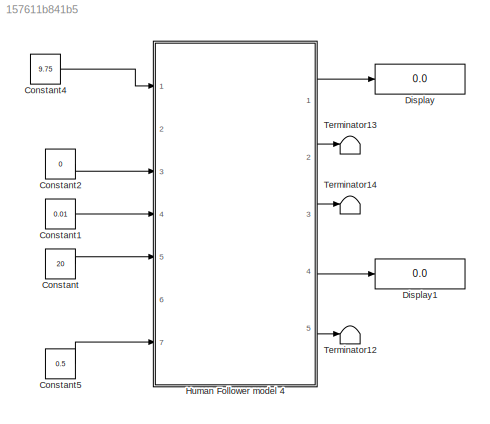
MODEL slx_157611b841b5
KIND model
CONFIG AbsTol = auto
CONFIG EnableMultiTasking = off
CONFIG FixedStep = 0.01
CONFIG MaxStep = auto
CONFIG MinStep = auto
CONFIG RelTol = 1e-3
CONFIG SampleTimeConstraint = Unconstrained
CONFIG Solver = FixedStepAuto
CONFIG SolverName = FixedStepAuto
CONFIG StartTime = 0.0
CONFIG StopTime = 10.0
BLOCK [Constant] Constant
  Value = 20
BLOCK [Constant] Constant1
  Value = 0.01
BLOCK [Constant] Constant2
  Value = 0
BLOCK [Constant] Constant4
  Value = 9.75
BLOCK [Constant] Constant5
  Value = 0.5
BLOCK [Display] Display
  Decimation = 1
  Ports = [1]
BLOCK [Display] Display1
  Decimation = 1
  Ports = [1]
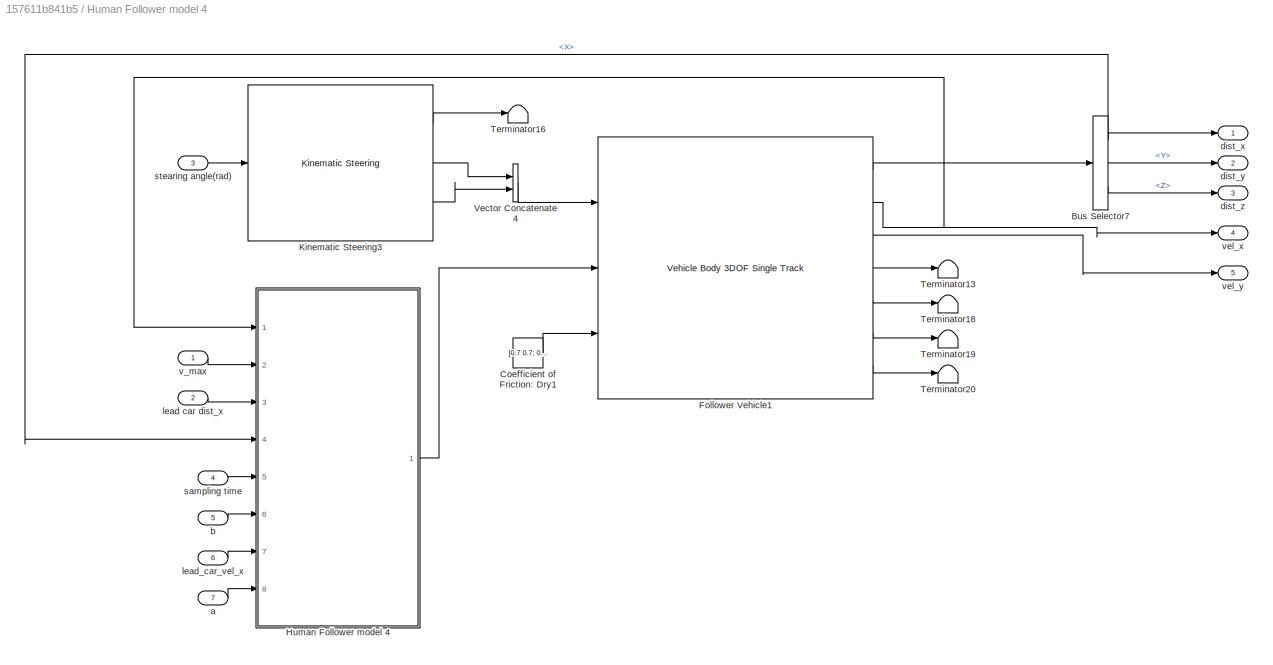
BLOCK [SubSystem] Human Follower model 4
  Ports = [7, 5]
  RequestExecContextInheritance = off
BLOCK [BusSelector] Human Follower model 4/Bus Selector7
  OutputAsBus = off
  OutputSignals = InertFrm.Cg.Disp.X,InertFrm.Cg.Disp.Y,InertFrm.Cg.Disp.Z
  Ports = [1, 3]
BLOCK [Constant] Human Follower model 4/Coefficient of Friction: Dry1
  Value = [0.7 0.7; 0.7 0.7]
BLOCK [Reference] Human Follower model 4/Follower Vehicle1  REF=autolibshared/Vehicle Body 3DOF Single Track
  Ports = [3, 7]
  SourceBlock = autolibshared/Vehicle Body 3DOF Single Track
  SourceProductBaseCode = PW
  SourceProductName = Powertrain Blockset
  SourceType = Vehicle Body 3DOF Lateral
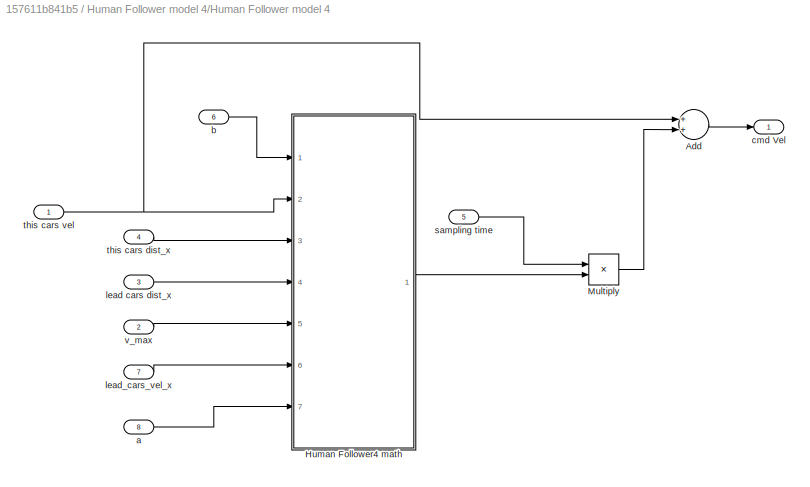
BLOCK [SubSystem] Human Follower model 4/Human Follower model 4
  Ports = [8, 1]
  RequestExecContextInheritance = off
BLOCK [Sum] Human Follower model 4/Human Follower model 4/Add
  InputSameDT = off
  OutDataTypeStr = Inherit: Inherit via internal rule
  Ports = [2, 1]
  SaturateOnIntegerOverflow = off
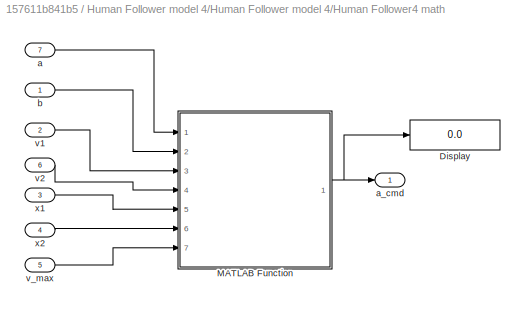
BLOCK [SubSystem] Human Follower model 4/Human Follower model 4/Human Follower4 math
  Ports = [7, 1]
  RequestExecContextInheritance = off
BLOCK [Display] Human Follower model 4/Human Follower model 4/Human Follower4 math/Display
  Decimation = 1
  Ports = [1]
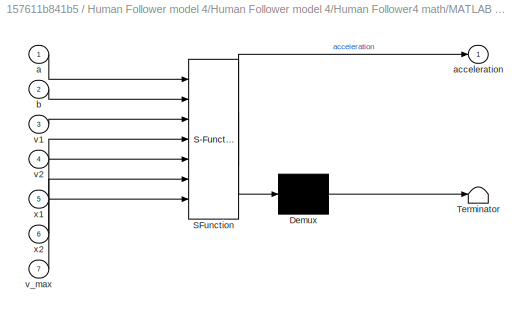
BLOCK [SubSystem] Human Follower model 4/Human Follower model 4/Human Follower4 math/MATLAB Function
  ErrorFcn = Stateflow.Translate.translate
  PermitHierarchicalResolution = ExplicitOnly
  Ports = [7, 1]
  RequestExecContextInheritance = off
  SFBlockType = MATLAB Function
  TreatAsAtomicUnit = on
BLOCK [Demux] Human Follower model 4/Human Follower model 4/Human Follower4 math/MATLAB Function/ Demux 
  Outputs = 1
  Ports = [1, 1]
BLOCK [S-Function] Human Follower model 4/Human Follower model 4/Human Follower4 math/MATLAB Function/ SFunction 
  EnableBusSupport = on
  FunctionName = sf_sfun
  PortCounts = [7 2]
  Ports = [7, 2]
  SFcnIsStateOwnerBlock = off
  SFunctionDeploymentMode = off
  Tag = Stateflow S-Function Human_Fallower_4_R2018b 5
BLOCK [Terminator] Human Follower model 4/Human Follower model 4/Human Follower4 math/MATLAB Function/ Terminator 
BLOCK [Inport] Human Follower model 4/Human Follower model 4/Human Follower4 math/MATLAB Function/a
  IconDisplay = Port number
BLOCK [Outport] Human Follower model 4/Human Follower model 4/Human Follower4 math/MATLAB Function/acceleration
  IconDisplay = Port number
BLOCK [Inport] Human Follower model 4/Human Follower model 4/Human Follower4 math/MATLAB Function/b
  IconDisplay = Port number
  Port = 2
BLOCK [Inport] Human Follower model 4/Human Follower model 4/Human Follower4 math/MATLAB Function/v1
  IconDisplay = Port number
  Port = 3
BLOCK [Inport] Human Follower model 4/Human Follower model 4/Human Follower4 math/MATLAB Function/v2
  IconDisplay = Port number
  Port = 4
BLOCK [Inport] Human Follower model 4/Human Follower model 4/Human Follower4 math/MATLAB Function/v_max
  IconDisplay = Port number
  Port = 7
BLOCK [Inport] Human Follower model 4/Human Follower model 4/Human Follower4 math/MATLAB Function/x1
  IconDisplay = Port number
  Port = 5
BLOCK [Inport] Human Follower model 4/Human Follower model 4/Human Follower4 math/MATLAB Function/x2
  IconDisplay = Port number
  Port = 6
BLOCK [Inport] Human Follower model 4/Human Follower model 4/Human Follower4 math/a
  IconDisplay = Port number
  Port = 7
BLOCK [Outport] Human Follower model 4/Human Follower model 4/Human Follower4 math/a_cmd
  IconDisplay = Port number
BLOCK [Inport] Human Follower model 4/Human Follower model 4/Human Follower4 math/b
  IconDisplay = Port number
BLOCK [Inport] Human Follower model 4/Human Follower model 4/Human Follower4 math/v1
  IconDisplay = Port number
  Port = 2
BLOCK [Inport] Human Follower model 4/Human Follower model 4/Human Follower4 math/v2
  IconDisplay = Port number
  Port = 6
BLOCK [Inport] Human Follower model 4/Human Follower model 4/Human Follower4 math/v_max
  IconDisplay = Port number
  Port = 5
BLOCK [Inport] Human Follower model 4/Human Follower model 4/Human Follower4 math/x1
  IconDisplay = Port number
  Port = 3
BLOCK [Inport] Human Follower model 4/Human Follower model 4/Human Follower4 math/x2
  IconDisplay = Port number
  Port = 4
BLOCK [Product] Human Follower model 4/Human Follower model 4/Multiply
  InputSameDT = off
  OutDataTypeStr = Inherit: Inherit via internal rule
  Ports = [2, 1]
  RndMeth = Floor
  SaturateOnIntegerOverflow = off
BLOCK [Inport] Human Follower model 4/Human Follower model 4/a
  IconDisplay = Port number
  Port = 8
BLOCK [Inport] Human Follower model 4/Human Follower model 4/b
  IconDisplay = Port number
  Port = 6
BLOCK [Outport] Human Follower model 4/Human Follower model 4/cmd Vel
  IconDisplay = Port number
BLOCK [Inport] Human Follower model 4/Human Follower model 4/lead cars dist_x
  IconDisplay = Port number
  Port = 3
BLOCK [Inport] Human Follower model 4/Human Follower model 4/lead_cars_vel_x
  IconDisplay = Port number
  Port = 7
BLOCK [Inport] Human Follower model 4/Human Follower model 4/sampling time
  IconDisplay = Port number
  Port = 5
BLOCK [Inport] Human Follower model 4/Human Follower model 4/this cars dist_x
  IconDisplay = Port number
  Port = 4
BLOCK [Inport] Human Follower model 4/Human Follower model 4/this cars vel
  IconDisplay = Port number
BLOCK [Inport] Human Follower model 4/Human Follower model 4/v_max
  IconDisplay = Port number
  Port = 2
BLOCK [Reference] Human Follower model 4/Kinematic Steering3  REF=vehdynlibsteering/Kinematic Steering
  Ports = [1, 3]
  SourceBlock = vehdynlibsteering/Kinematic Steering
  SourceProductBaseCode = VE
  SourceProductName = Vehicle Dynamics Blockset
  SourceType = Kinematic Steering
BLOCK [Terminator] Human Follower model 4/Terminator13
BLOCK [Terminator] Human Follower model 4/Terminator16
BLOCK [Terminator] Human Follower model 4/Terminator18
BLOCK [Terminator] Human Follower model 4/Terminator19
BLOCK [Terminator] Human Follower model 4/Terminator20
BLOCK [Concatenate] Human Follower model 4/Vector Concatenate4
  Ports = [2, 1]
BLOCK [Inport] Human Follower model 4/a
  IconDisplay = Port number
  Port = 7
BLOCK [Inport] Human Follower model 4/b
  IconDisplay = Port number
  Port = 5
BLOCK [Outport] Human Follower model 4/dist_x
  IconDisplay = Port number
BLOCK [Outport] Human Follower model 4/dist_y
  IconDisplay = Port number
  Port = 2
BLOCK [Outport] Human Follower model 4/dist_z
  IconDisplay = Port number
  Port = 3
BLOCK [Inport] Human Follower model 4/lead car dist_x
  IconDisplay = Port number
  Port = 2
BLOCK [Inport] Human Follower model 4/lead_car_vel_x
  IconDisplay = Port number
  Port = 6
BLOCK [Inport] Human Follower model 4/sampling time
  IconDisplay = Port number
  Port = 4
BLOCK [Inport] Human Follower model 4/stearing angle(rad)
  IconDisplay = Port number
  Port = 3
BLOCK [Inport] Human Follower model 4/v_max
  IconDisplay = Port number
BLOCK [Outport] Human Follower model 4/vel_x
  IconDisplay = Port number
  Port = 4
BLOCK [Outport] Human Follower model 4/vel_y
  IconDisplay = Port number
  Port = 5
BLOCK [Terminator] Terminator12
BLOCK [Terminator] Terminator13
BLOCK [Terminator] Terminator14
LINE Constant1:1 -> Human Follower model 4:4
LINE Constant2:1 -> Human Follower model 4:3
LINE Constant4:1 -> Human Follower model 4:1
LINE Constant5:1 -> Human Follower model 4:7
LINE Constant:1 -> Human Follower model 4:5
NET Human Follower model 4/Bus Selector7:1 -> Human Follower model 4/Human Follower model 4:4, Human Follower model 4/dist_x:1
LINE Human Follower model 4/Bus Selector7:2 -> Human Follower model 4/dist_y:1
LINE Human Follower model 4/Bus Selector7:3 -> Human Follower model 4/dist_z:1
LINE Human Follower model 4/Coefficient of Friction: Dry1:1 -> Human Follower model 4/Follower Vehicle1:3
LINE Human Follower model 4/Follower Vehicle1:1 -> Human Follower model 4/Bus Selector7:1
NET Human Follower model 4/Follower Vehicle1:2 -> Human Follower model 4/Human Follower model 4:1, Human Follower model 4/vel_x:1
LINE Human Follower model 4/Follower Vehicle1:3 -> Human Follower model 4/vel_y:1
LINE Human Follower model 4/Follower Vehicle1:4 -> Human Follower model 4/Terminator13:1
LINE Human Follower model 4/Follower Vehicle1:5 -> Human Follower model 4/Terminator18:1
LINE Human Follower model 4/Follower Vehicle1:6 -> Human Follower model 4/Terminator19:1
LINE Human Follower model 4/Follower Vehicle1:7 -> Human Follower model 4/Terminator20:1
LINE Human Follower model 4/Human Follower model 4/Add:1 -> Human Follower model 4/Human Follower model 4/cmd Vel:1
NET Human Follower model 4/Human Follower model 4/Human Follower4 math/MATLAB Function:1 -> Human Follower model 4/Human Follower model 4/Human Follower4 math/Display:1, Human Follower model 4/Human Follower model 4/Human Follower4 math/a_cmd:1
LINE Human Follower model 4/Human Follower model 4/Human Follower4 math/a:1 -> Human Follower model 4/Human Follower model 4/Human Follower4 math/MATLAB Function:1
LINE Human Follower model 4/Human Follower model 4/Human Follower4 math/b:1 -> Human Follower model 4/Human Follower model 4/Human Follower4 math/MATLAB Function:2
LINE Human Follower model 4/Human Follower model 4/Human Follower4 math/v1:1 -> Human Follower model 4/Human Follower model 4/Human Follower4 math/MATLAB Function:3
LINE Human Follower model 4/Human Follower model 4/Human Follower4 math/v2:1 -> Human Follower model 4/Human Follower model 4/Human Follower4 math/MATLAB Function:4
LINE Human Follower model 4/Human Follower model 4/Human Follower4 math/v_max:1 -> Human Follower model 4/Human Follower model 4/Human Follower4 math/MATLAB Function:7
LINE Human Follower model 4/Human Follower model 4/Human Follower4 math/x1:1 -> Human Follower model 4/Human Follower model 4/Human Follower4 math/MATLAB Function:5
LINE Human Follower model 4/Human Follower model 4/Human Follower4 math/x2:1 -> Human Follower model 4/Human Follower model 4/Human Follower4 math/MATLAB Function:6
LINE Human Follower model 4/Human Follower model 4/Human Follower4 math:1 -> Human Follower model 4/Human Follower model 4/Multiply:2
LINE Human Follower model 4/Human Follower model 4/Multiply:1 -> Human Follower model 4/Human Follower model 4/Add:2
LINE Human Follower model 4/Human Follower model 4/a:1 -> Human Follower model 4/Human Follower model 4/Human Follower4 math:7
LINE Human Follower model 4/Human Follower model 4/b:1 -> Human Follower model 4/Human Follower model 4/Human Follower4 math:1
LINE Human Follower model 4/Human Follower model 4/lead cars dist_x:1 -> Human Follower model 4/Human Follower model 4/Human Follower4 math:4
LINE Human Follower model 4/Human Follower model 4/lead_cars_vel_x:1 -> Human Follower model 4/Human Follower model 4/Human Follower4 math:6
LINE Human Follower model 4/Human Follower model 4/sampling time:1 -> Human Follower model 4/Human Follower model 4/Multiply:1
LINE Human Follower model 4/Human Follower model 4/this cars dist_x:1 -> Human Follower model 4/Human Follower model 4/Human Follower4 math:3
NET Human Follower model 4/Human Follower model 4/this cars vel:1 -> Human Follower model 4/Human Follower model 4/Add:1, Human Follower model 4/Human Follower model 4/Human Follower4 math:2
LINE Human Follower model 4/Human Follower model 4/v_max:1 -> Human Follower model 4/Human Follower model 4/Human Follower4 math:5
LINE Human Follower model 4/Human Follower model 4:1 -> Human Follower model 4/Follower Vehicle1:2
LINE Human Follower model 4/Kinematic Steering3:1 -> Human Follower model 4/Terminator16:1
LINE Human Follower model 4/Kinematic Steering3:2 -> Human Follower model 4/Vector Concatenate4:1
LINE Human Follower model 4/Kinematic Steering3:3 -> Human Follower model 4/Vector Concatenate4:2
LINE Human Follower model 4/Vector Concatenate4:1 -> Human Follower model 4/Follower Vehicle1:1
LINE Human Follower model 4/a:1 -> Human Follower model 4/Human Follower model 4:8
LINE Human Follower model 4/b:1 -> Human Follower model 4/Human Follower model 4:6
LINE Human Follower model 4/lead car dist_x:1 -> Human Follower model 4/Human Follower model 4:3
LINE Human Follower model 4/lead_car_vel_x:1 -> Human Follower model 4/Human Follower model 4:7
LINE Human Follower model 4/sampling time:1 -> Human Follower model 4/Human Follower model 4:5
LINE Human Follower model 4/stearing angle(rad):1 -> Human Follower model 4/Kinematic Steering3:1
LINE Human Follower model 4/v_max:1 -> Human Follower model 4/Human Follower model 4:2
LINE Human Follower model 4:1 -> Display:1
LINE Human Follower model 4:2 -> Terminator13:1
LINE Human Follower model 4:3 -> Terminator14:1
LINE Human Follower model 4:4 -> Display1:1
LINE Human Follower model 4:5 -> Terminator12:1
note: NET lines group one-source signal fan-out (src -> all destinations, sorted); 1:1 wires keep LINE
CHART Human Follower model 4/Human Follower model 4/Human Follower4 math/MATLAB Function states=1 transitions=1
  STATE_LABEL 'eML_blk_kernel()'
  STATE_LABEL 'SCRIPT:\nfunction acceleration = fcn(a, b, v1, v2, x1, x2, v_max)\n\nds = 2;\nL = 4.5;\n\n\n\nVd1 = v_max(tanh(x1 - L - ds) + tanh(L + ds))/(1 + tanh(L + ds));\nVd2 = v_max(tanh(x2 - L - ds) + tanh(L + ds))/(1 + tanh(L + ds));\n\nif x2 == 0\n    x2 = 0.1;\nend\n\nacceleration = (a(v2 - v1)/((x2 -1)^2)) +  b(Vd2 - Vd1 - v1);\n'
